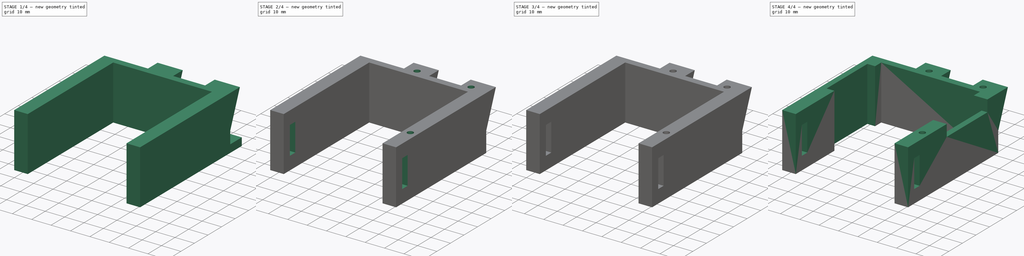
[diagram: build sequence overview — one tinted view per stage of 4, left to right]
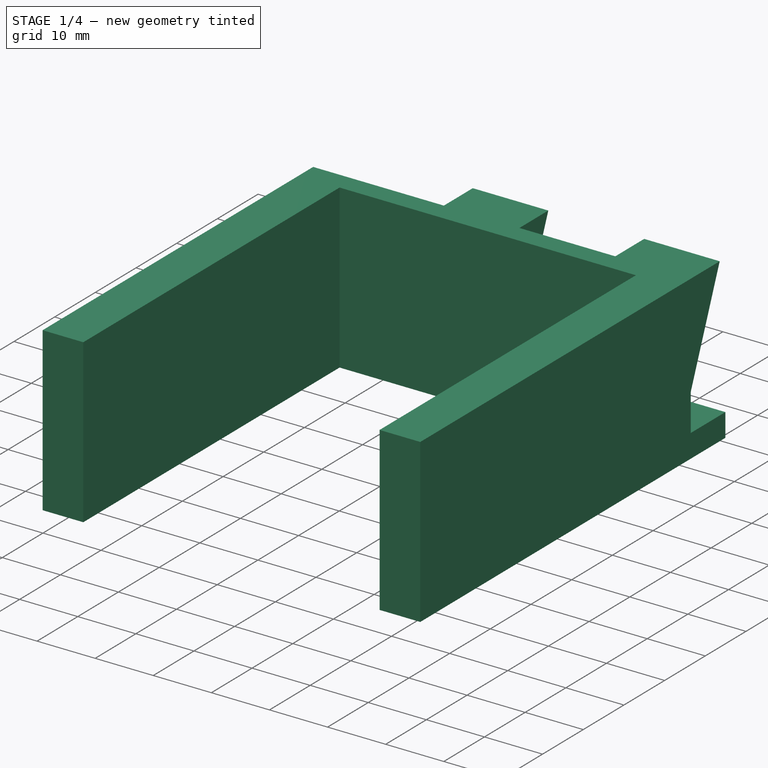
[diagram: stage 1 of 4 — iso view after this stage's code; geometry added in this stage tinted green]
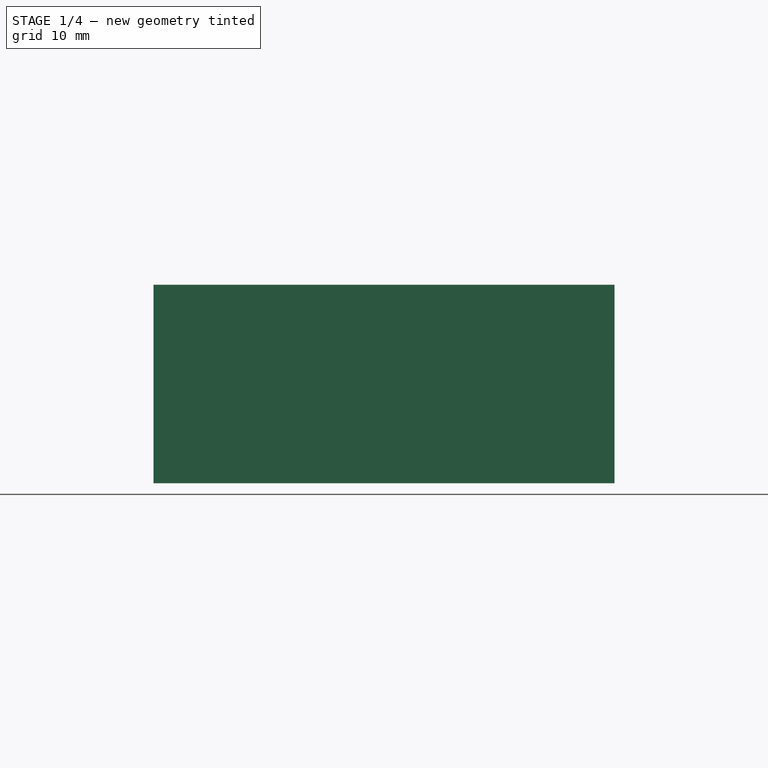
[diagram: stage 1 of 4 — front view after this stage's code; geometry added in this stage tinted green]
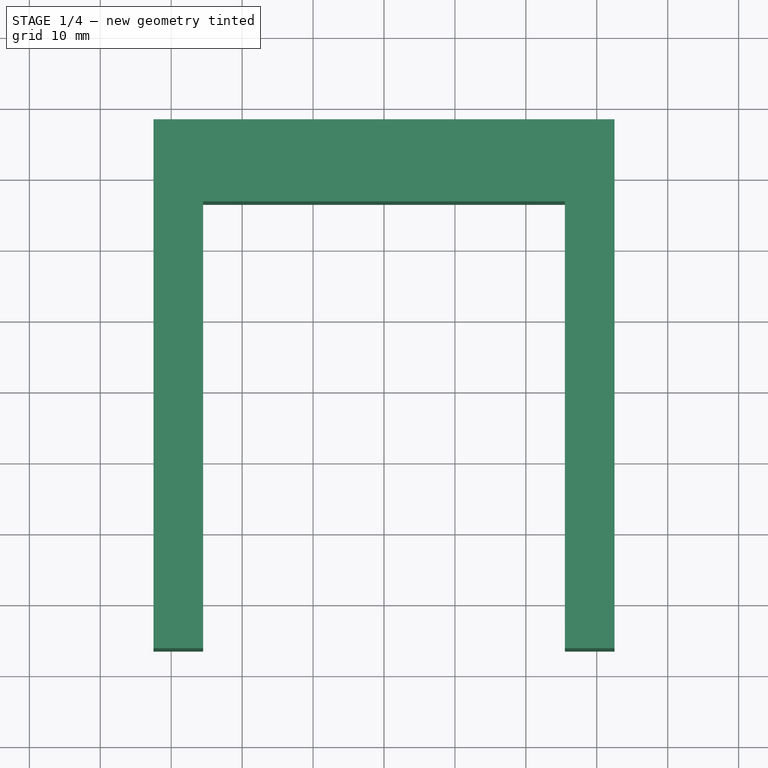
[diagram: stage 1 of 4 — top view after this stage's code; geometry added in this stage tinted green]
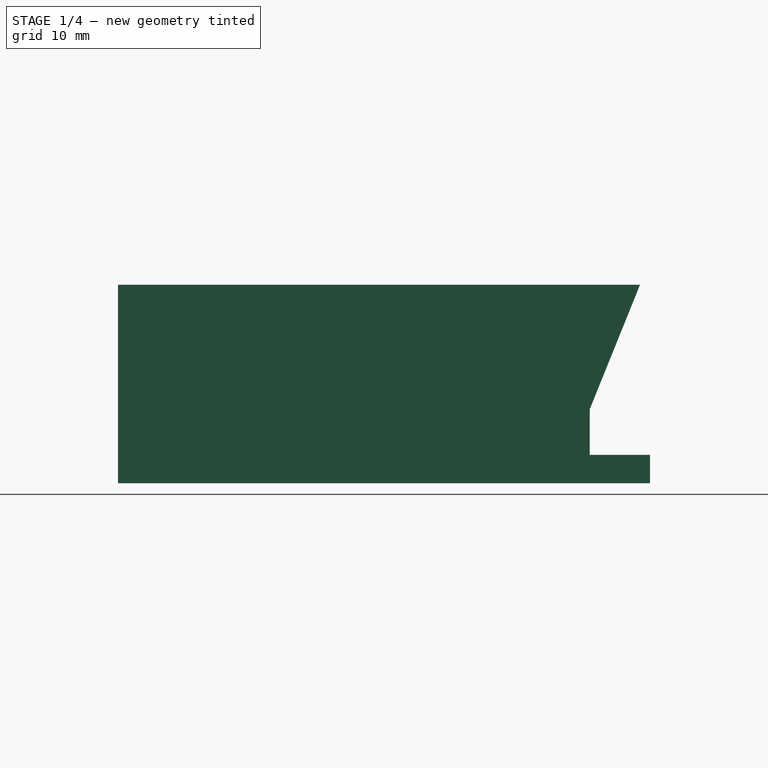
[diagram: stage 1 of 4 — right view after this stage's code; geometry added in this stage tinted green]
FCSTD DOCUMENT  (FreeCAD 0.14R3702 (Git))
Label: battery-pack-holder
License: CC-BY 3.0
LicenseURL: http://creativecommons.org/licenses/by/3.0/
objects: Sketcher::SketchObject×10, PartDesign::Pocket×9, PartDesign::Pad×1, PartDesign::Mirrored×1, Part::Fillet×1, Part::FeaturePython×1
note: 33 computed .brp shape members not serialized (recipe doc carries the construction recipe); baked Part::Feature solids carry a one-line shape summary decoded from their .brp

FEATURE [Sketcher::SketchObject] Sketch  label="main-body-sketch"
  Placement = pos=(0,0,0) rot=(0.57735,0.57735,0.57735;2.0944rad)
  sketch-geometry (7):
    g0: LineSegment StartX=-66.5 StartY=14 StartZ=0 EndX=7.1 EndY=14 EndZ=0
    g1: LineSegment StartX=8.5 StartY=-14 StartZ=0 EndX=-66.5 EndY=-14 EndZ=0
    g2: LineSegment StartX=-66.5 StartY=-14 StartZ=0 EndX=-66.5 EndY=14 EndZ=0
    g3: LineSegment StartX=0 StartY=-3.57312 StartZ=0 EndX=7.1 EndY=14 EndZ=0
    g4: LineSegment StartX=8.5 StartY=-14 StartZ=0 EndX=8.5 EndY=-10 EndZ=0
    g5: LineSegment StartX=8.5 StartY=-10 StartZ=0 EndX=0 EndY=-10 EndZ=0
    g6: LineSegment StartX=0 StartY=-10 StartZ=0 EndX=0 EndY=-3.57312 EndZ=0
  constraints (21):
    c: Coincident(g1,g2)
    c: Coincident(g2,g0)
    c: Horizontal(g0)
    c: Horizontal(g1)
    c: Vertical(g2)
    c: Symmetric(g0,g1,g-1)
    c: DistanceX(g-1,g1) = -66.5
    c: Vertical(g4)
    c: Coincident(g4,g5)
    c: Horizontal(g5)
    c: Coincident(g5,g6)
    c: Vertical(g6)
    c: Coincident(g3,g6)
    c: PointOnObject(g3,g-2)
    c: Coincident(g4,g1)
    c: Coincident(g3,g0)
    c: DistanceY(g4) = 4
    c: DistanceY(g1,g0) = 28
    c: DistanceX(g5) = -8.5
    c: Angle(g0,g3) = 1.18682
    c: DistanceX(g3,g0) = 7.1
FEATURE [PartDesign::Pad] Pad  label="main-body"
  Length = 65
  Length2 = 100
  Midplane = true
  Placement = pos=(0,0,0) rot=(0.57735,0.57735,0.57735;2.0944rad)
  Sketch = -> Sketch
  Type = 0
FEATURE [Sketcher::SketchObject] Sketch001  label="top-cutout-1-sketch"
  ExternalGeometry = -> [Pad]
  Placement = pos=(0,0,14) rot=(0,0,-1;1.5708rad)
  Support = -> Pad [Face3]
  sketch-geometry (7):
    g0: LineSegment StartX=3.5 StartY=25.5 StartZ=0 EndX=66.5 EndY=25.5 EndZ=0
    g1: LineSegment [constr] StartX=66.5 StartY=25.5 StartZ=0 EndX=66.5 EndY=-25.5 EndZ=0
    g2: LineSegment StartX=66.5 StartY=-25.5 StartZ=0 EndX=3.5 EndY=-25.5 EndZ=0
    g3: LineSegment StartX=3.5 StartY=-25.5 StartZ=0 EndX=3.5 EndY=25.5 EndZ=0
    g4: LineSegment StartX=66.5 StartY=25.5 StartZ=0 EndX=68.5 EndY=25.5 EndZ=0
    g5: LineSegment StartX=68.5 StartY=25.5 StartZ=0 EndX=68.5 EndY=-25.5 EndZ=0
    g6: LineSegment StartX=68.5 StartY=-25.5 StartZ=0 EndX=66.5 EndY=-25.5 EndZ=0
  constraints (20):
    c: Coincident(g0,g1)
    c: Coincident(g1,g2)
    c: Coincident(g2,g3)
    c: Coincident(g3,g0)
    c: Horizontal(g0)
    c: Horizontal(g2)
    c: Vertical(g1)
    c: Vertical(g3)
    c: Symmetric(g0,g2,g-1)
    c: PointOnObject(g0,g-3)
    c: DistanceX(g0) = 63
    c: Coincident(g4,g5)
    c: Coincident(g5,g6)
    c: Horizontal(g4)
    c: Horizontal(g6)
    c: Vertical(g5)
    c: Coincident(g4,g0)
    c: Coincident(g6,g1)
    c: DistanceX(g4) = 2
    c: DistanceY(g5) = -51
FEATURE [PartDesign::Pocket] Pocket  label="top-cutout-1"
  Length = 5
  Placement = pos=(0,0,0) rot=(0.57735,0.57735,0.57735;2.0944rad)
  Sketch = -> Sketch001
  Type = 1
FEATURE [Sketcher::SketchObject] Sketch002  label="top-cutout-2-sketch"
  Placement = pos=(0,0,14) rot=(0,0,-1;1.5708rad)
  Support = -> Pocket [Face10]
  sketch-geometry (15):
    g0: LineSegment StartX=-7.1 StartY=19.5 StartZ=0 EndX=0 EndY=19.5 EndZ=0
    g1: LineSegment StartX=0 StartY=19.5 StartZ=0 EndX=0 EndY=3 EndZ=0
    g2: LineSegment StartX=0 StartY=3 StartZ=0 EndX=-7.1 EndY=3 EndZ=0
    g3: LineSegment [constr] StartX=-7.1 StartY=3 StartZ=0 EndX=-7.1 EndY=19.5 EndZ=0
    g4: LineSegment StartX=-7.1 StartY=19.5 StartZ=0 EndX=-8.1 EndY=19.5 EndZ=0
    g5: LineSegment StartX=-8.1 StartY=19.5 StartZ=0 EndX=-8.1 EndY=3 EndZ=0
    g6: LineSegment StartX=-8.1 StartY=3 StartZ=0 EndX=-7.1 EndY=3 EndZ=0
    g7: LineSegment StartX=-7.1 StartY=-10 StartZ=0 EndX=0 EndY=-10 EndZ=0
    g8: LineSegment StartX=0 StartY=-10 StartZ=0 EndX=0 EndY=-32.5 EndZ=0
    g9: LineSegment [constr] StartX=0 StartY=-32.5 StartZ=0 EndX=-7.1 EndY=-32.5 EndZ=0
    g10: LineSegment [constr] StartX=-7.1 StartY=-32.5 StartZ=0 EndX=-7.1 EndY=-10 EndZ=0
    g11: LineSegment StartX=-8.1 StartY=-10 StartZ=0 EndX=-7.1 EndY=-10 EndZ=0
    g12: LineSegment StartX=0 StartY=-33.5 StartZ=0 EndX=-8.1 EndY=-33.5 EndZ=0
    g13: LineSegment StartX=-8.1 StartY=-33.5 StartZ=0 EndX=-8.1 EndY=-10 EndZ=0
    g14: LineSegment StartX=0 StartY=-33.5 StartZ=0 EndX=0 EndY=-32.5 EndZ=0
  constraints (40):
    c: Coincident(g0,g1)
    c: Coincident(g1,g2)
    c: Coincident(g2,g3)
    c: Coincident(g3,g0)
    c: Horizontal(g0)
    c: Horizontal(g2)
    c: Vertical(g1)
    c: Vertical(g3)
    c: PointOnObject(g0,g-2)
    c: Coincident(g4,g5)
    c: Coincident(g5,g6)
    c: Horizontal(g4)
    c: Horizontal(g6)
    c: Vertical(g5)
    c: Coincident(g4,g0)
    c: Coincident(g6,g2)
    c: DistanceX(g4) = -1
    c: DistanceY(g1) = -16.5
    c: Coincident(g7,g8)
    c: Coincident(g8,g9)
    c: Coincident(g9,g10)
    c: Coincident(g10,g7)
    c: Horizontal(g7)
    c: Horizontal(g9)
    c: Vertical(g8)
    c: Vertical(g10)
    c: PointOnObject(g7,g-2)
    c: Coincident(g12,g13)
    c: Coincident(g13,g11)
    c: Horizontal(g11)
    c: Horizontal(g12)
    c: Vertical(g13)
    c: Coincident(g11,g7)
    c: PointOnObject(g11,g5)
    c: PointOnObject(g12,g-2)
    c: Vertical(g14)
    c: Coincident(g14,g12)
    c: Coincident(g14,g8)
    c: DistanceY(g8,g12) = -1
    c: DistanceY(g8,g7) = 22.5
FEATURE [PartDesign::Pocket] Pocket001  label="top-cutout-2"
  Length = 18
  Placement = pos=(0,0,0) rot=(0.57735,0.57735,0.57735;2.0944rad)
  Sketch = -> Sketch002
  Type = 0
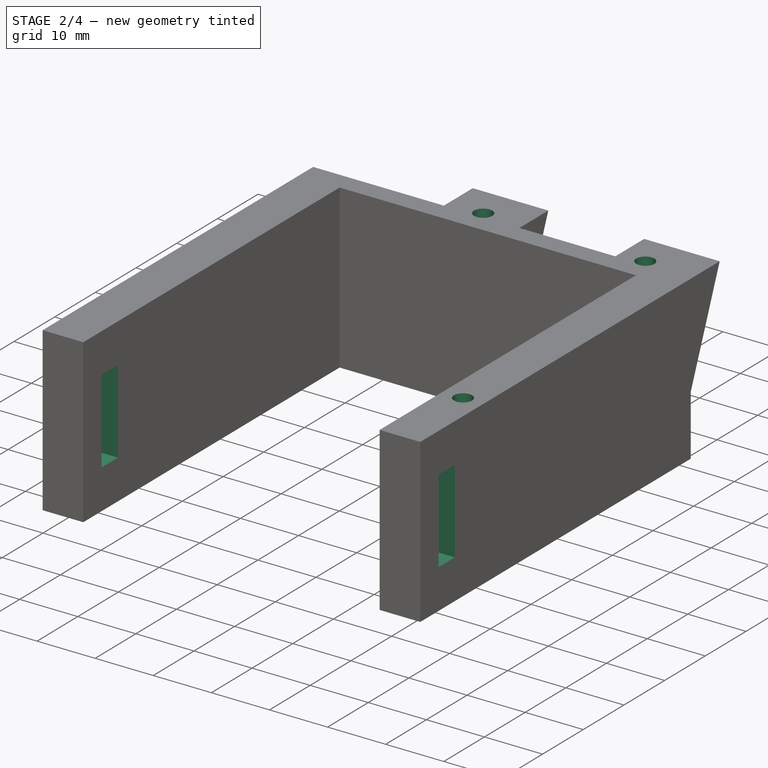
[diagram: stage 2 of 4 — iso view after this stage's code; geometry added in this stage tinted green]
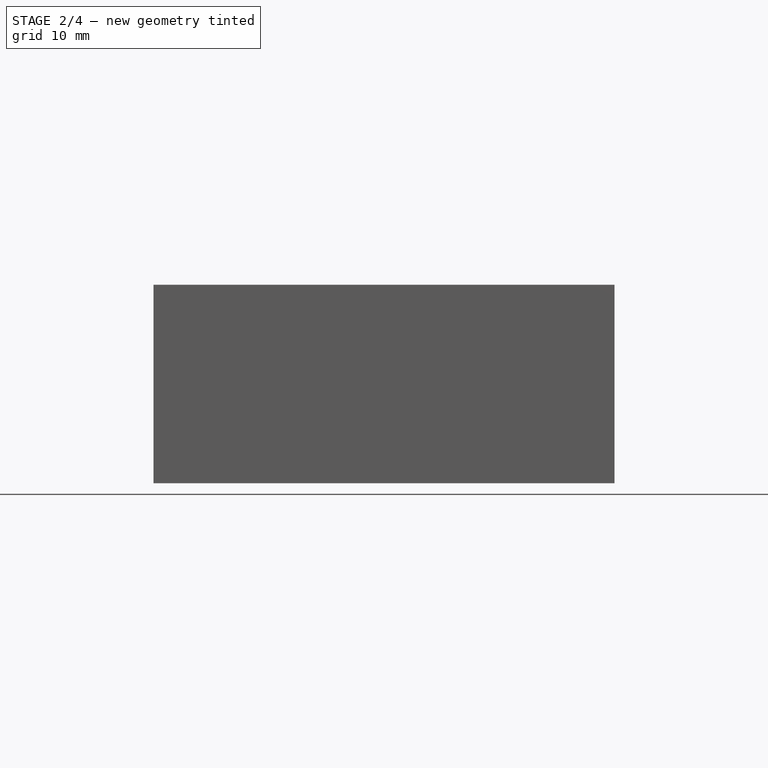
[diagram: stage 2 of 4 — front view after this stage's code; geometry added in this stage tinted green]
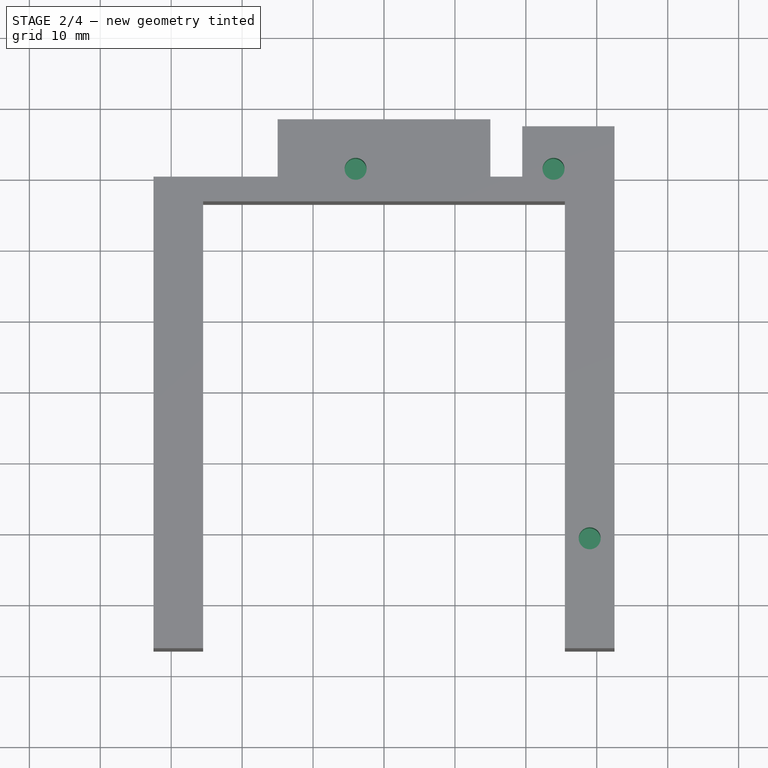
[diagram: stage 2 of 4 — top view after this stage's code; geometry added in this stage tinted green]
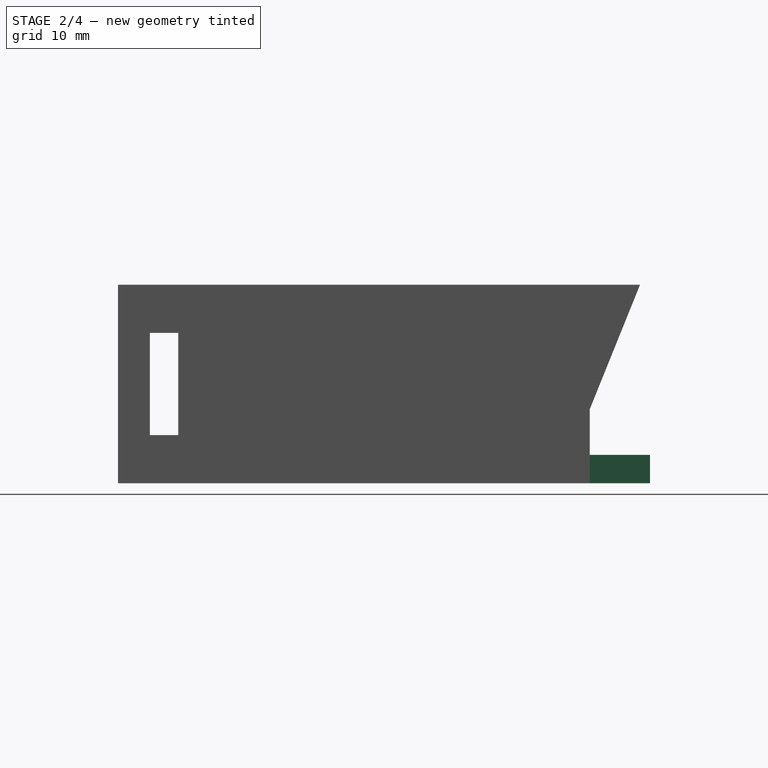
[diagram: stage 2 of 4 — right view after this stage's code; geometry added in this stage tinted green]
FEATURE [Sketcher::SketchObject] Sketch003  label="top-cutout-3-sketch"
  Placement = pos=(0,0,-14) rot=(0.707107,0.707107,0;3.14159rad)
  Support = -> Pocket001 [Face1]
  sketch-geometry (12):
    g0: LineSegment [constr] StartX=0 StartY=32.5 StartZ=0 EndX=8.5 EndY=32.5 EndZ=0
    g1: LineSegment [constr] StartX=8.5 StartY=32.5 StartZ=0 EndX=8.5 EndY=15 EndZ=0
    g2: LineSegment StartX=8.5 StartY=15 StartZ=0 EndX=0 EndY=15 EndZ=0
    g3: LineSegment StartX=0 StartY=15 StartZ=0 EndX=0 EndY=32.5 EndZ=0
    g4: LineSegment StartX=9.5 StartY=33.5 StartZ=0 EndX=0 EndY=33.5 EndZ=0
    g5: LineSegment StartX=0 StartY=33.5 StartZ=0 EndX=0 EndY=32.5 EndZ=0
    g6: LineSegment StartX=9.5 StartY=15 StartZ=0 EndX=9.5 EndY=33.5 EndZ=0
    g7: LineSegment StartX=8.5 StartY=15 StartZ=0 EndX=9.5 EndY=15 EndZ=0
    g8: LineSegment StartX=0 StartY=-15 StartZ=0 EndX=9.5 EndY=-15 EndZ=0
    g9: LineSegment StartX=9.5 StartY=-15 StartZ=0 EndX=9.5 EndY=-33.5 EndZ=0
    g10: LineSegment StartX=9.5 StartY=-33.5 StartZ=0 EndX=0 EndY=-33.5 EndZ=0
    g11: LineSegment StartX=0 StartY=-33.5 StartZ=0 EndX=0 EndY=-15 EndZ=0
  constraints (32):
    c: Coincident(g0,g1)
    c: Coincident(g1,g2)
    c: Coincident(g2,g3)
    c: Coincident(g3,g0)
    c: Horizontal(g0)
    c: Horizontal(g2)
    c: Vertical(g1)
    c: Vertical(g3)
    c: PointOnObject(g0,g-2)
    c: Coincident(g4,g5)
    c: Coincident(g6,g4)
    c: Horizontal(g4)
    c: Vertical(g5)
    c: Vertical(g6)
    c: Coincident(g5,g0)
    c: Horizontal(g7)
    c: Coincident(g7,g1)
    c: Coincident(g7,g6)
    c: Equal(g5,g7)
    c: DistanceY(g5) = -1
    c: DistanceY(g3) = 17.5
    c: Coincident(g8,g9)
    c: Coincident(g9,g10)
    c: Coincident(g10,g11)
    c: Coincident(g11,g8)
    c: Horizontal(g8)
    c: Horizontal(g10)
    c: Vertical(g9)
    c: Vertical(g11)
    c: Symmetric(g8,g2,g-1)
    c: Symmetric(g10,g4,g-1)
    c: Symmetric(g8,g6,g-1)
FEATURE [PartDesign::Pocket] Pocket002  label="top-cutout-3"
  Length = 4.1
  Placement = pos=(0,0,0) rot=(0.57735,0.57735,0.57735;2.0944rad)
  Sketch = -> Sketch003
  Type = 0
FEATURE [Sketcher::SketchObject] Sketch004  label="side-cutout-4-sketch"
  Placement = pos=(32.5,0,0) rot=(0.57735,0.57735,0.57735;2.0944rad)
  Support = -> Pocket002 [Face8]
  sketch-geometry (4):
    g0: LineSegment StartX=-62 StartY=7.2 StartZ=0 EndX=-58 EndY=7.2 EndZ=0
    g1: LineSegment StartX=-58 StartY=7.2 StartZ=0 EndX=-58 EndY=-7.2 EndZ=0
    g2: LineSegment StartX=-58 StartY=-7.2 StartZ=0 EndX=-62 EndY=-7.2 EndZ=0
    g3: LineSegment StartX=-62 StartY=-7.2 StartZ=0 EndX=-62 EndY=7.2 EndZ=0
  constraints (12):
    c: Coincident(g0,g1)
    c: Coincident(g1,g2)
    c: Coincident(g2,g3)
    c: Coincident(g3,g0)
    c: Horizontal(g0)
    c: Horizontal(g2)
    c: Vertical(g1)
    c: Vertical(g3)
    c: Symmetric(g1,g0,g-1)
    c: DistanceY(g1) = -14.4
    c: DistanceX(g0) = 4
    c: DistanceX(g-1,g0) = -58
FEATURE [PartDesign::Pocket] Pocket003  label="side-cutout-4"
  Length = 5
  Placement = pos=(0,0,0) rot=(0.57735,0.57735,0.57735;2.0944rad)
  Sketch = -> Sketch004
  Type = 1
FEATURE [Sketcher::SketchObject] Sketch005  label="top-drills-sketch"
  Placement = pos=(0,0,14) rot=(0,0,-1;1.5708rad)
  Support = -> Pocket003 [Face13]
  sketch-geometry (4):
    g0: Circle CenterX=-1.1 CenterY=23.9 CenterZ=0 NormalX=0 NormalY=0 NormalZ=1 Radius=1.55
    g1: Circle CenterX=51 CenterY=29 CenterZ=0 NormalX=0 NormalY=0 NormalZ=1 Radius=1.55
    g2: Circle CenterX=-1.1 CenterY=-4 CenterZ=0 NormalX=0 NormalY=0 NormalZ=1 Radius=1.55
    g3: LineSegment [constr] StartX=-1.1 StartY=23.9 StartZ=0 EndX=-1.1 EndY=-4 EndZ=0
  constraints (11):
    c: Radius(g0) = 1.55
    c: Equal(g1,g0)
    c: Equal(g0,g2)
    c: Vertical(g3)
    c: Coincident(g3,g0)
    c: Coincident(g3,g2)
    c: DistanceY(g3) = -27.9
    c: DistanceX(g0,g1) = 52.1
    c: DistanceY(g1,g0) = -5.1
    c: DistanceX(g-1,g2) = -1.1
    c: DistanceY(g-1,g2) = -4
FEATURE [PartDesign::Pocket] Pocket004  label="top-drills"
  Length = 9
  Placement = pos=(0,0,0) rot=(0.57735,0.57735,0.57735;2.0944rad)
  Sketch = -> Sketch005
  Type = 0
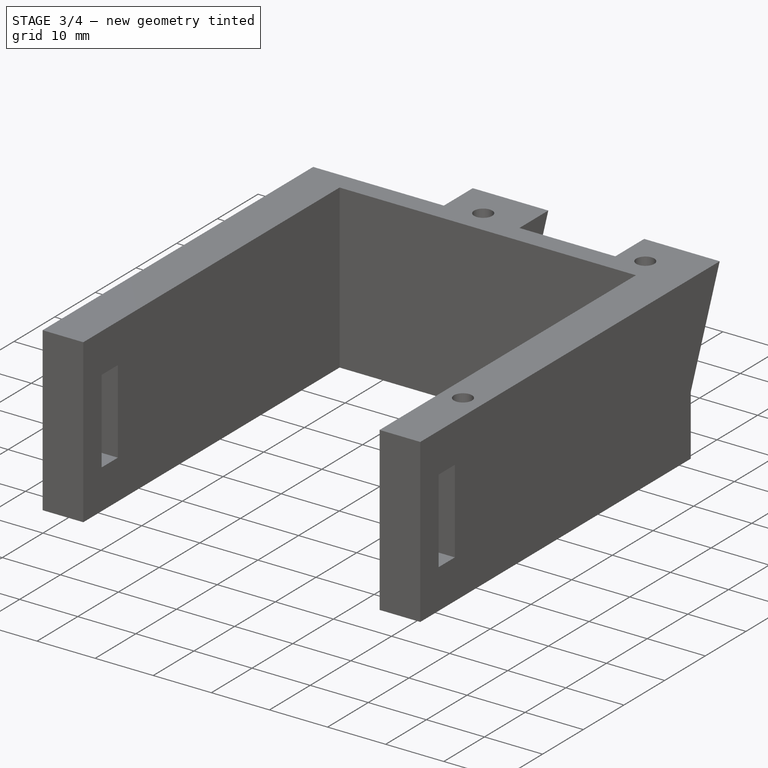
[diagram: stage 3 of 4 — iso view after this stage's code; geometry added in this stage tinted green]
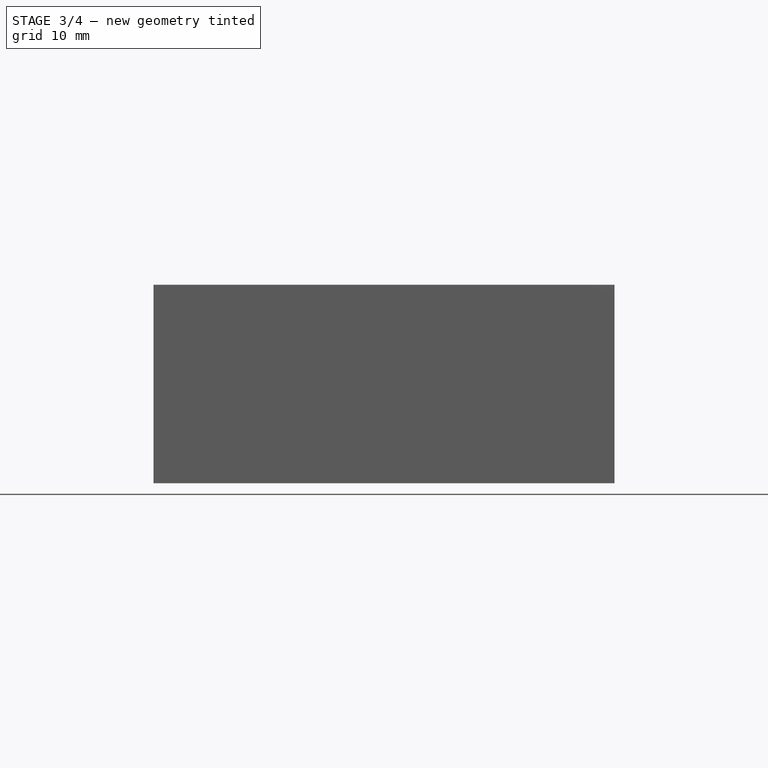
[diagram: stage 3 of 4 — front view after this stage's code; geometry added in this stage tinted green]
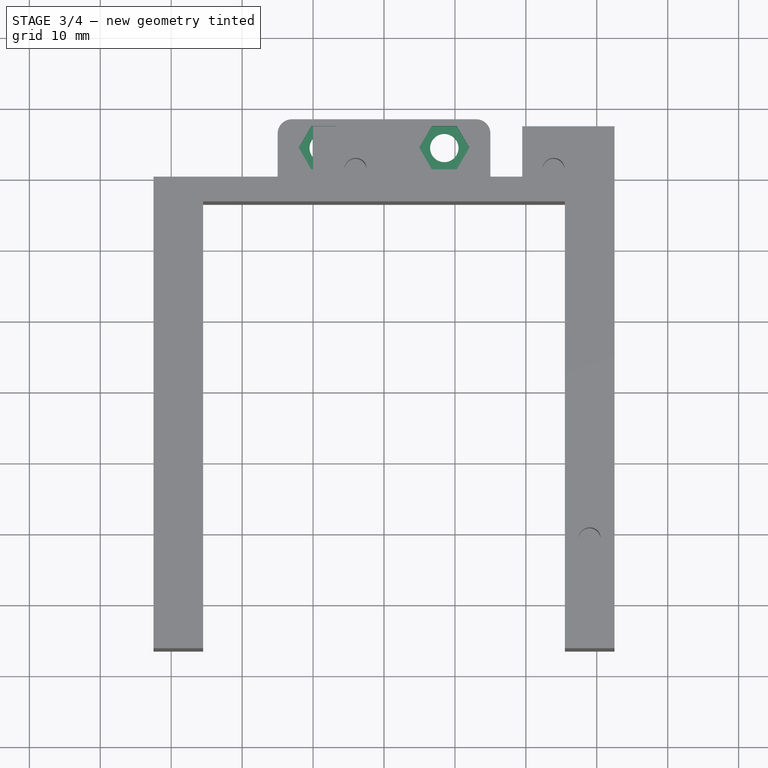
[diagram: stage 3 of 4 — top view after this stage's code; geometry added in this stage tinted green]
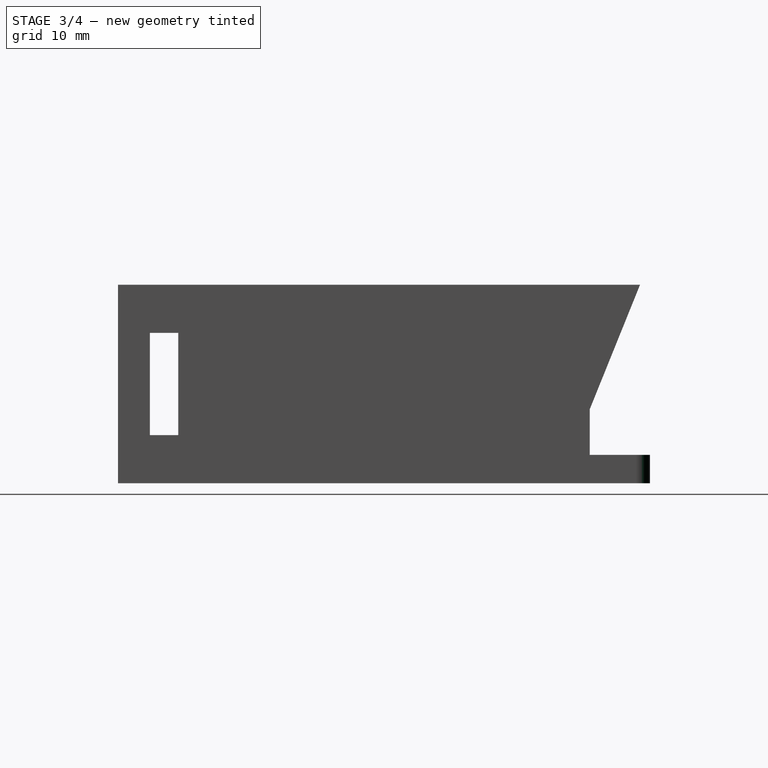
[diagram: stage 3 of 4 — right view after this stage's code; geometry added in this stage tinted green]
FEATURE [Sketcher::SketchObject] Sketch006  label="bottom-drills-sketch"
  Placement = pos=(0,0,-10) rot=(0,0,-1;1.5708rad)
  Support = -> Pocket004 [Face23]
  sketch-geometry (3):
    g0: Circle CenterX=-4.5 CenterY=8.5 CenterZ=0 NormalX=0 NormalY=0 NormalZ=1 Radius=2
    g1: Circle CenterX=-4.5 CenterY=-8.5 CenterZ=0 NormalX=0 NormalY=0 NormalZ=1 Radius=2
    g2: LineSegment [constr] StartX=-4.5 StartY=8.5 StartZ=0 EndX=-4.5 EndY=-8.5 EndZ=0
  constraints (8):
    c: Radius(g0) = 2
    c: Equal(g0,g1)
    c: Vertical(g2)
    c: Coincident(g2,g1)
    c: Coincident(g2,g0)
    c: Symmetric(g0,g1,g-1)
    c: DistanceX(g-1,g0) = -4.5
    c: DistanceY(g2) = -17
FEATURE [PartDesign::Pocket] Pocket005  label="bottom-drills"
  Length = 5
  Placement = pos=(0,0,0) rot=(0.57735,0.57735,0.57735;2.0944rad)
  Sketch = -> Sketch006
  Type = 1
FEATURE [Sketcher::SketchObject] Sketch007  label="nut-cutout-master-sketch"
  Placement = pos=(0,0,-10) rot=(0,0,-1;1.5708rad)
  Support = -> Pocket005 [Face20]
  sketch-geometry (9):
    g0: LineSegment [constr] StartX=-4.5 StartY=12.0218 StartZ=0 EndX=-4.5 EndY=8.5 EndZ=0
    g1: LineSegment [constr] StartX=-7.55 StartY=8.5 StartZ=0 EndX=-4.5 EndY=8.5 EndZ=0
    g2: LineSegment StartX=-4.5 StartY=12.0218 StartZ=0 EndX=-7.55 EndY=10.2609 EndZ=0
    g3: LineSegment StartX=-7.55 StartY=10.2609 StartZ=0 EndX=-7.55 EndY=6.73908 EndZ=0
    g4: LineSegment [constr] StartX=-7.55 StartY=10.2609 StartZ=0 EndX=-4.5 EndY=8.5 EndZ=0
    g5: LineSegment StartX=-7.55 StartY=6.73908 StartZ=0 EndX=-4.5 EndY=4.97816 EndZ=0
    g6: LineSegment StartX=-4.5 StartY=4.97816 StartZ=0 EndX=-1.45 EndY=6.73908 EndZ=0
    g7: LineSegment StartX=-1.45 StartY=6.73908 StartZ=0 EndX=-1.45 EndY=10.2609 EndZ=0
    g8: LineSegment StartX=-1.45 StartY=10.2609 StartZ=0 EndX=-4.5 EndY=12.0218 EndZ=0
  constraints (23):
    c: Horizontal(g1)
    c: Coincident(g2,g3)
    c: PointOnObject(g1,g3)
    c: Coincident(g2,g0)
    c: Coincident(g2,g4)
    c: Symmetric(g3,g2,g1)
    c: Angle(g0,g4) = 1.0472
    c: Vertical(g0)
    c: Coincident(g0,g1)
    c: Coincident(g4,g0)
    c: Equal(g4,g0)
    c: Coincident(g3,g5)
    c: Coincident(g5,g6)
    c: Coincident(g6,g7)
    c: Vertical(g7)
    c: Coincident(g7,g8)
    c: Coincident(g8,g0)
    c: Symmetric(g3,g6,g0)
    c: Symmetric(g5,g0,g1)
    c: Symmetric(g7,g2,g0)
    c: DistanceX(g2,g7) = 6.1
    c: DistanceX(g-1,g0) = -4.5
    c: DistanceY(g-1,g0) = 8.5
FEATURE [PartDesign::Pocket] Pocket006  label="nut-cutout-master"
  Length = 2.5
  Placement = pos=(0,0,0) rot=(0.57735,0.57735,0.57735;2.0944rad)
  Sketch = -> Sketch007
  Type = 0
FEATURE [PartDesign::Mirrored] Mirrored  label="nut-cutout-mirror"
  MirrorPlane = -> Sketch007 [H_Axis]
  Originals = -> [Pocket006]
  Placement = pos=(0,0,0) rot=(0.57735,0.57735,0.57735;2.0944rad)
FEATURE [Part::Fillet] Fillet  label="battery-pack-holder"
  Base = -> Mirrored
  Edges = 2 edges r=2: [Edge35,Edge44]
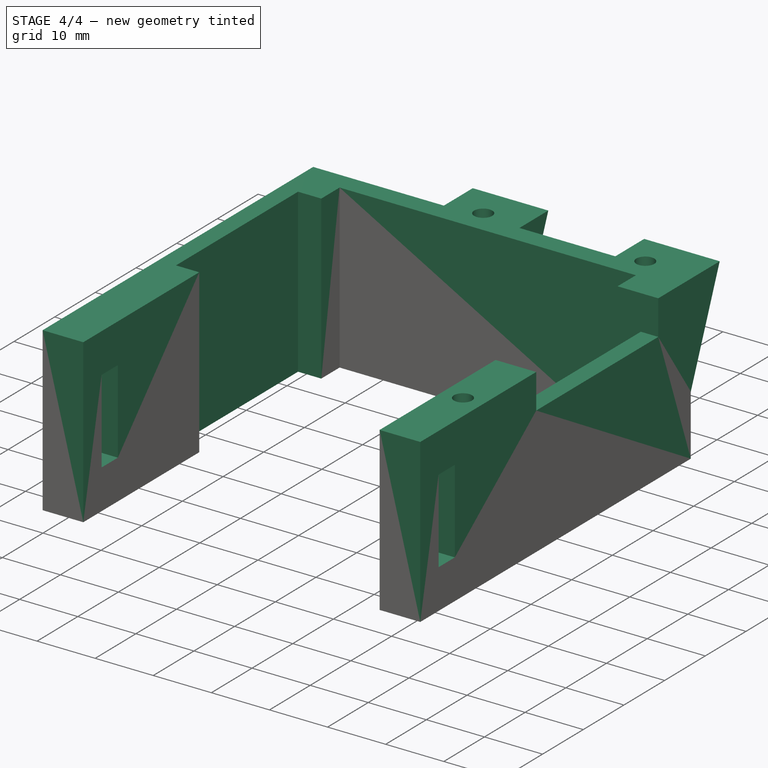
[diagram: stage 4 of 4 — iso view after this stage's code; geometry added in this stage tinted green]
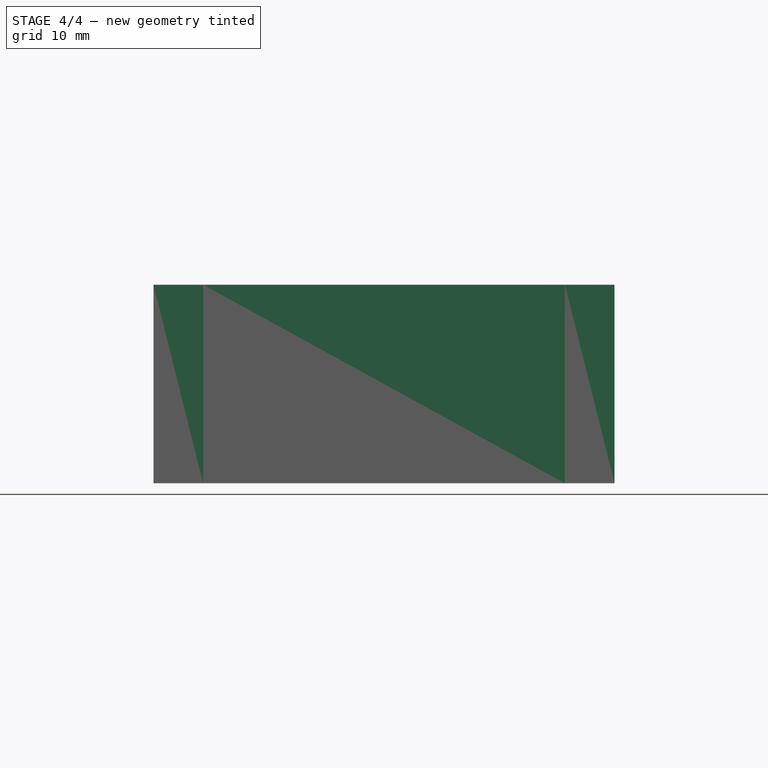
[diagram: stage 4 of 4 — front view after this stage's code; geometry added in this stage tinted green]
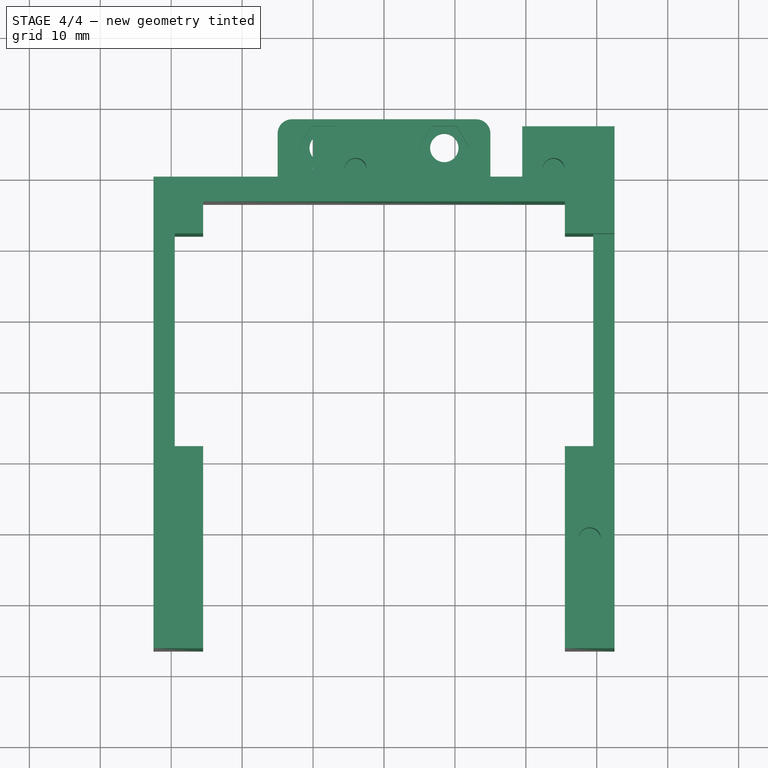
[diagram: stage 4 of 4 — top view after this stage's code; geometry added in this stage tinted green]
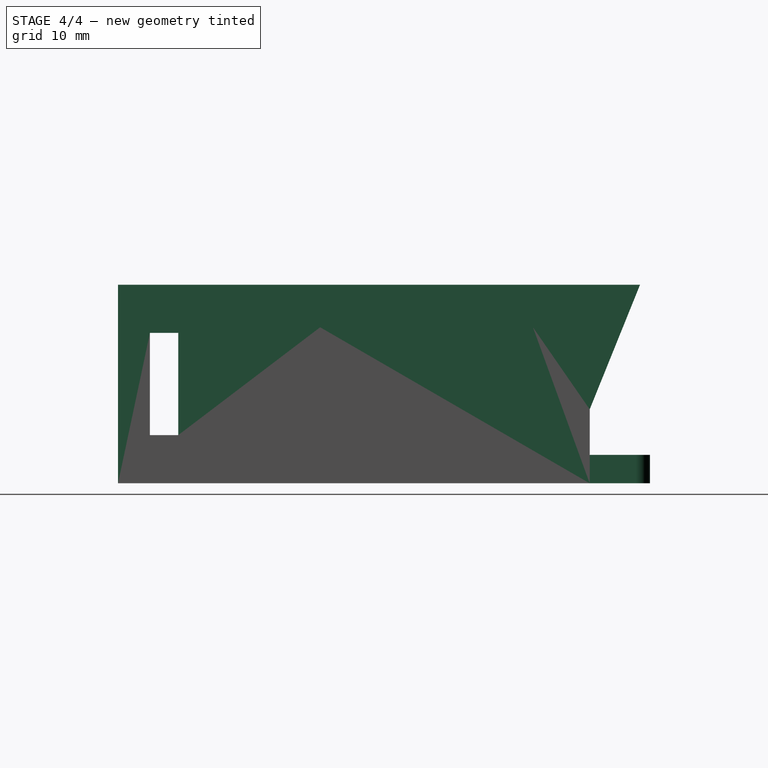
[diagram: stage 4 of 4 — right view after this stage's code; geometry added in this stage tinted green]
FEATURE [Sketcher::SketchObject] Sketch008  label="wires-cutout-sketch"
  ExternalGeometry = -> [Fillet]
  Placement = pos=(0,0,14) rot=(0,0,1;0rad)
  Support = -> Fillet [Face18]
  sketch-geometry (4):
    g0: LineSegment StartX=-29.5 StartY=-8 StartZ=0 EndX=29.5 EndY=-8 EndZ=0
    g1: LineSegment StartX=29.5 StartY=-8 StartZ=0 EndX=29.5 EndY=-38 EndZ=0
    g2: LineSegment StartX=29.5 StartY=-38 StartZ=0 EndX=-29.5 EndY=-38 EndZ=0
    g3: LineSegment StartX=-29.5 StartY=-38 StartZ=0 EndX=-29.5 EndY=-8 EndZ=0
  constraints (12):
    c: Coincident(g0,g1)
    c: Coincident(g1,g2)
    c: Coincident(g2,g3)
    c: Coincident(g3,g0)
    c: Horizontal(g0)
    c: Horizontal(g2)
    c: Vertical(g1)
    c: Vertical(g3)
    c: DistanceX(g0,g-3) = -3
    c: DistanceY(g0,g-3) = 8
    c: Symmetric(g0,g0,g-2)
    c: DistanceY(g1) = -30
FEATURE [PartDesign::Pocket] Pocket007  label="wires-cutout"
  Length = 5
  Sketch = -> Sketch008
  Type = 1
FEATURE [Sketcher::SketchObject] Sketch009  label="wires-cutout-2-sketch"
  Placement = pos=(0,0,14) rot=(0,0,1;0rad)
  Support = -> Pocket007 [Face26]
  sketch-geometry (4):
    g0: LineSegment StartX=29.5 StartY=-8 StartZ=0 EndX=39.5 EndY=-8 EndZ=0
    g1: LineSegment StartX=39.5 StartY=-8 StartZ=0 EndX=39.5 EndY=-38 EndZ=0
    g2: LineSegment StartX=39.5 StartY=-38 StartZ=0 EndX=29.5 EndY=-38 EndZ=0
    g3: LineSegment StartX=29.5 StartY=-38 StartZ=0 EndX=29.5 EndY=-8 EndZ=0
  constraints (10):
    c: Coincident(g0,g1)
    c: Coincident(g1,g2)
    c: Coincident(g2,g3)
    c: Coincident(g3,g0)
    c: Horizontal(g0)
    c: Horizontal(g2)
    c: Vertical(g1)
    c: Vertical(g3)
    c: DistanceX(g0) = 10
    c: DistanceY(g1) = -30
FEATURE [PartDesign::Pocket] Pocket008  label="wires-cutout-2"
  Length = 6
  Sketch = -> Sketch009
  Type = 0
FEATURE [Part::FeaturePython] Clone  label="battery-pack-holder-final"  # Draft clone (typed FeaturePython)
  Objects = -> [Pocket008]
  Placement = pos=(0,0,14) rot=(0,0,1;0rad)
  Scale = (1,1,1)
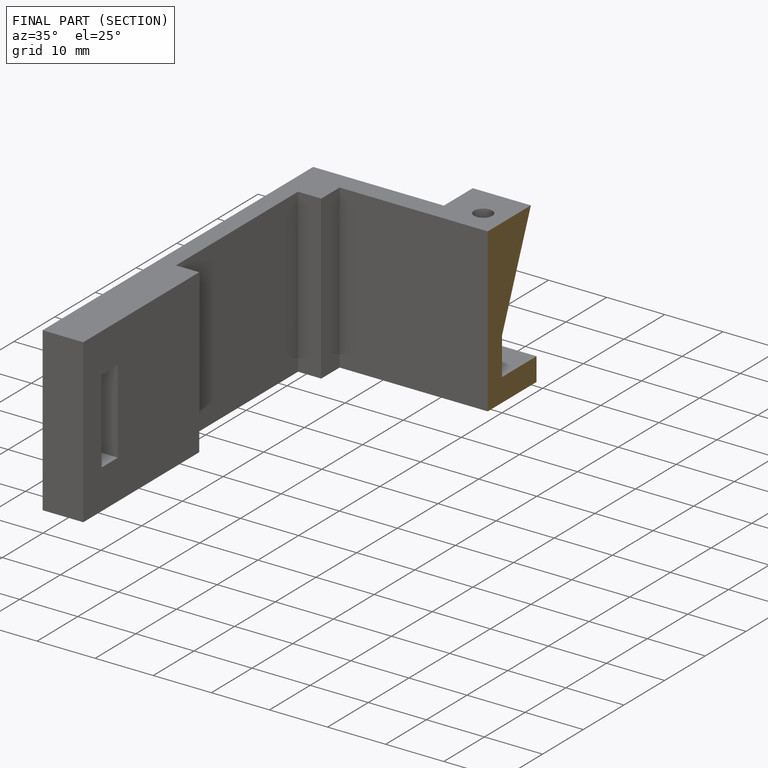
[diagram: finished part — half-section view (interior)]
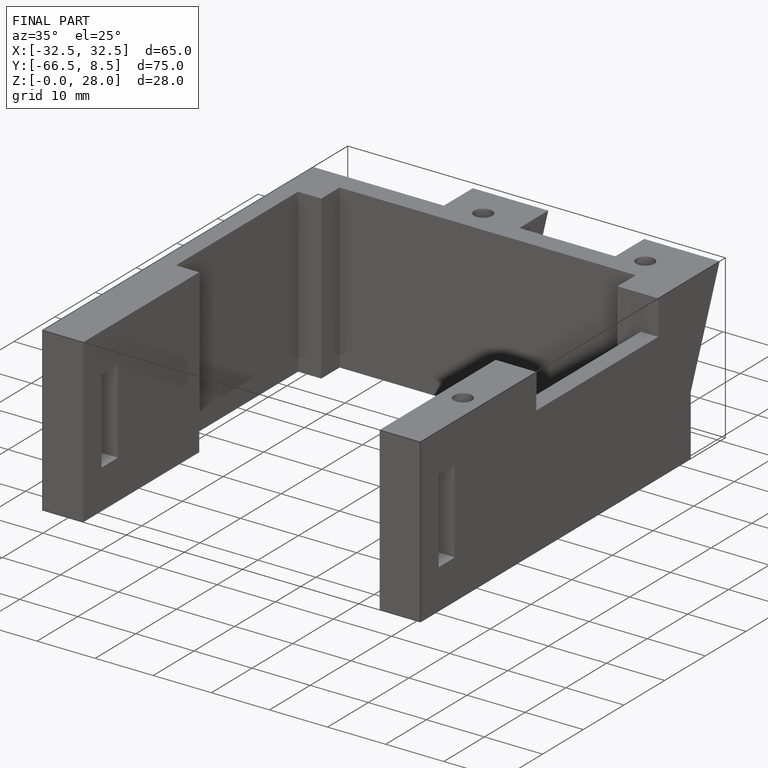
[diagram: finished part — iso view with bounding-box wireframe]
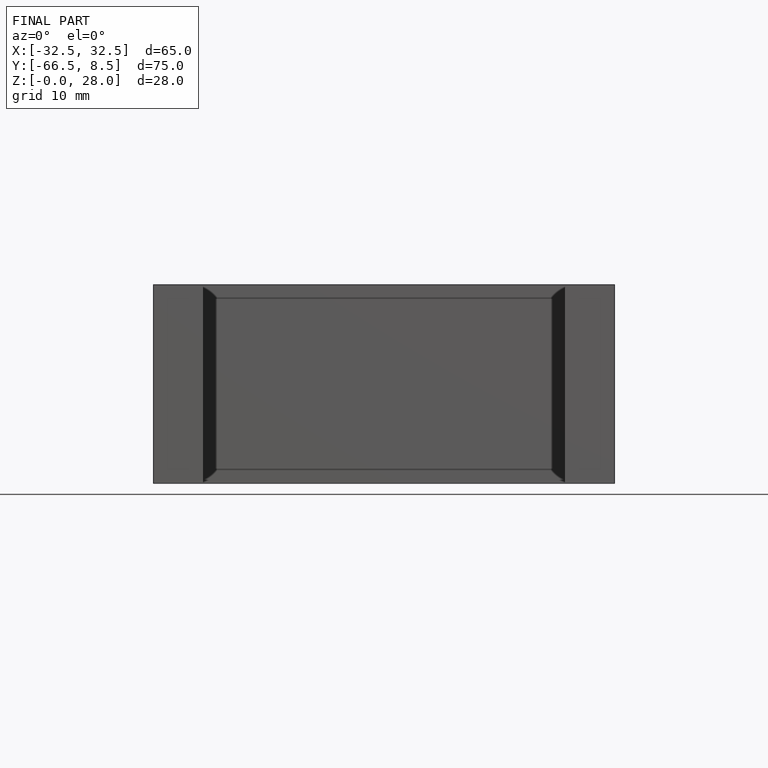
[diagram: finished part — front view with bounding-box wireframe]
